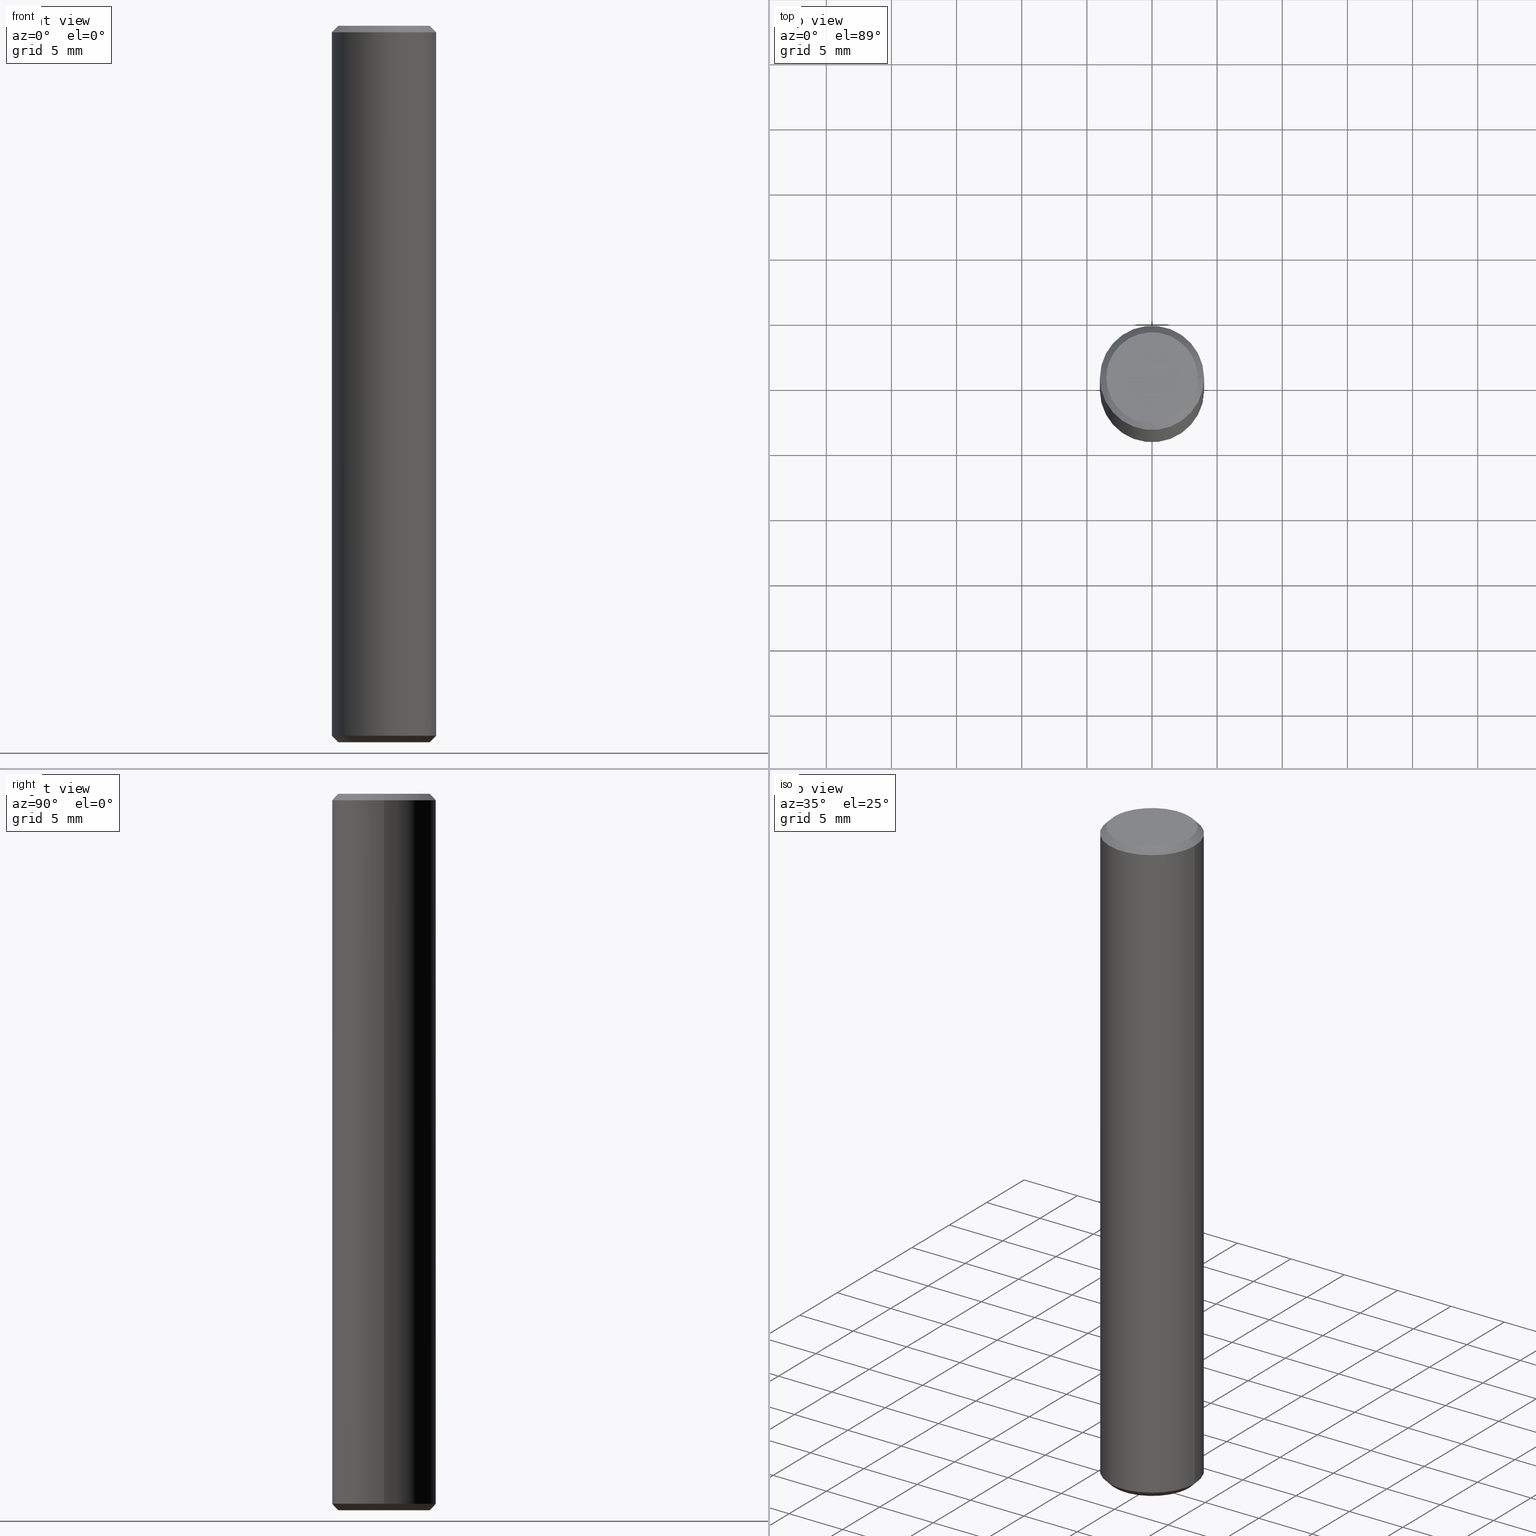
[diagram: canonical four-view strip — front | top / right | iso, engineering-drawing reading convention]
A machine part, canonical four-view strip (front | top / right | iso — engineering-drawing reading convention). The complete STEP part file that produces these views, byte-faithful:
ISO-10303-21;
HEADER;
/* Generated by software containing ST-Developer
 * from STEP Tools, Inc. (www.steptools.com) 
 */

FILE_DESCRIPTION(
/* description */ ('PERNO D8 L=55 ZIGRINATO IN C45 ZINC.'),
/* implementation_level */ '2;1');

FILE_NAME(
/* name */ 
'Q:\\Catalogo\\2_Accessori Dierre\\Per Download Web e catalogo cartace
o\\CATALOGO ACCESSORI PER RIPARI\\PAGINA 63\\CCRAA0000007.stp',
/* time_stamp */ '2018-11-06T12:32:56+01:00',
/* author */ ('fzagni'),
/* organization */ (''),
/* preprocessor_version */ 'ST-DEVELOPER v16.1',
/* originating_system */ 'Autodesk Inventor 2016',
/* authorisation */ '');

FILE_SCHEMA (('AUTOMOTIVE_DESIGN { 1 0 10303 214 3 1 1 }'));
ENDSEC;

DATA;
#10=MECHANICAL_DESIGN_GEOMETRIC_PRESENTATION_REPRESENTATION('',(#13),#391);
#11=SHAPE_REPRESENTATION_RELATIONSHIP('SRR','None',#400,#12);
#12=ADVANCED_BREP_SHAPE_REPRESENTATION('',(#14),#390);
#13=STYLED_ITEM('',(#409),#14);
#14=MANIFOLD_SOLID_BREP('None',#87);
#15=LINE('',#302,#17);
#16=LINE('',#387,#18);
#17=VECTOR('',#112,0.707106781186546);
#18=VECTOR('',#113,0.707106781186547);
#19=B_SPLINE_SURFACE_WITH_KNOTS('',3,3,((#218,#219,#220,#221,#222,#223,
#224,#225,#226,#227,#228,#229,#230,#231,#232,#233,#234,#235,#236,#237,#238),
(#239,#240,#241,#242,#243,#244,#245,#246,#247,#248,#249,#250,#251,#252,
#253,#254,#255,#256,#257,#258,#259),(#260,#261,#262,#263,#264,#265,#266,
#267,#268,#269,#270,#271,#272,#273,#274,#275,#276,#277,#278,#279,#280),
(#281,#282,#283,#284,#285,#286,#287,#288,#289,#290,#291,#292,#293,#294,
#295,#296,#297,#298,#299,#300,#301)),.UNSPECIFIED.,.F.,.T.,.F.,(4,4),(4,
1,1,1,1,1,1,1,1,1,1,1,1,1,1,1,1,1,4),(-0.000155473939237252,0.707106781186548),
(0.,1.46317741512096,2.19830596759267,2.93343452006437,4.39661193518533,
5.8597893503063,7.32296676542726,8.78614418054822,10.2493215956692,11.7124990107901,
13.1756764259111,14.6388538410321,16.102031256153,17.565208671274,19.028386086395,
20.4915635015159,21.2266920539876,21.9618206064593,23.4249980215803),
 .UNSPECIFIED.);
#20=B_SPLINE_SURFACE_WITH_KNOTS('',3,3,((#303,#304,#305,#306,#307,#308,
#309,#310,#311,#312,#313,#314,#315,#316,#317,#318,#319,#320,#321,#322,#323),
(#324,#325,#326,#327,#328,#329,#330,#331,#332,#333,#334,#335,#336,#337,
#338,#339,#340,#341,#342,#343,#344),(#345,#346,#347,#348,#349,#350,#351,
#352,#353,#354,#355,#356,#357,#358,#359,#360,#361,#362,#363,#364,#365),
(#366,#367,#368,#369,#370,#371,#372,#373,#374,#375,#376,#377,#378,#379,
#380,#381,#382,#383,#384,#385,#386)),.UNSPECIFIED.,.F.,.T.,.F.,(4,4),(4,
1,1,1,1,1,1,1,1,1,1,1,1,1,1,1,1,1,4),(-0.000155473939219691,0.707106781186548),
(0.,1.46317741512096,2.19830596759267,2.93343452006437,4.39661193518533,
5.8597893503063,7.32296676542726,8.78614418054822,10.2493215956692,11.7124990107901,
13.1756764259111,14.6388538410321,16.102031256153,17.565208671274,19.028386086395,
20.4915635015159,21.2266920539876,21.9618206064593,23.4249980215803),
 .UNSPECIFIED.);
#21=FACE_BOUND('',#34,.T.);
#22=CIRCLE('',#91,4.);
#23=CIRCLE('',#92,4.);
#24=CIRCLE('',#93,4.);
#25=CIRCLE('',#94,4.);
#26=CYLINDRICAL_SURFACE('',#90,4.);
#27=FACE_OUTER_BOUND('',#32,.T.);
#28=FACE_OUTER_BOUND('',#33,.T.);
#29=FACE_OUTER_BOUND('',#35,.T.);
#30=FACE_OUTER_BOUND('',#36,.T.);
#31=FACE_OUTER_BOUND('',#37,.T.);
#32=EDGE_LOOP('',(#60,#61));
#33=EDGE_LOOP('',(#62,#63));
#34=EDGE_LOOP('',(#64,#65));
#35=EDGE_LOOP('',(#66,#67));
#36=EDGE_LOOP('',(#68,#69,#70,#71,#72,#73));
#37=EDGE_LOOP('',(#74,#75,#76,#77,#78,#79));
#38=B_SPLINE_CURVE_WITH_KNOTS('',3,(#118,#119,#120,#121,#122,#123,#124,
#125,#126,#127,#128,#129,#130,#131,#132,#133,#134,#135,#136,#137,#138,#139),
 .UNSPECIFIED.,.F.,.F.,(4,2,2,2,2,2,2,2,2,2,4),(-1.08955497045056,-1.01702181769227,
-0.944640724717616,-0.810905341004596,-0.677848824479045,-0.544900310347416,
-0.411914353175308,-0.279312765602494,-0.145679835180853,-0.0728933082064506,
-9.99999955952902E-7),.UNSPECIFIED.);
#39=B_SPLINE_CURVE_WITH_KNOTS('',3,(#140,#141,#142,#143,#144,#145,#146,
#147,#148,#149,#150,#151,#152,#153,#154,#155,#156,#157,#158,#159,#160,#161),
 .UNSPECIFIED.,.F.,.F.,(4,2,2,2,2,2,2,2,2,2,4),(-1.09215615577238,-1.01908969371656,
-0.94612926562469,-0.812177060236959,-0.679258661775982,-0.545954975382256,
-0.412688821487687,-0.279314407160549,-0.145259503700677,-0.0727059776514787,
0.),.UNSPECIFIED.);
#40=B_SPLINE_CURVE_WITH_KNOTS('',3,(#174,#175,#176,#177,#178,#179,#180,
#181,#182,#183,#184,#185,#186,#187,#188,#189,#190,#191,#192,#193,#194,#195),
 .UNSPECIFIED.,.F.,.F.,(4,2,2,2,2,2,2,2,2,2,4),(9.99999956626313E-7,0.0728933082065209,
0.145679835181092,0.279312765602998,0.411914353176092,0.544900310348418,
0.677848824480262,0.810905341006086,0.944640724719306,1.01702181769412,
1.08955497045244),.UNSPECIFIED.);
#41=B_SPLINE_CURVE_WITH_KNOTS('',3,(#196,#197,#198,#199,#200,#201,#202,
#203,#204,#205,#206,#207,#208,#209,#210,#211,#212,#213,#214,#215,#216,#217),
 .UNSPECIFIED.,.F.,.F.,(4,2,2,2,2,2,2,2,2,2,4),(1.00000000138878E-6,0.0727074412823273,
0.145261459495931,0.279316349619257,0.412690750677529,0.545956891313938,
0.679260564445767,0.812178949683233,0.946131141744621,1.01909156257802,
1.09215801736459),.UNSPECIFIED.);
#42=VERTEX_POINT('',#116);
#43=VERTEX_POINT('',#117);
#44=VERTEX_POINT('',#163);
#45=VERTEX_POINT('',#164);
#46=VERTEX_POINT('',#167);
#47=VERTEX_POINT('',#168);
#48=VERTEX_POINT('',#172);
#49=VERTEX_POINT('',#173);
#50=EDGE_CURVE('',#42,#43,#38,.T.);
#51=EDGE_CURVE('',#43,#42,#39,.T.);
#52=EDGE_CURVE('',#44,#45,#22,.T.);
#53=EDGE_CURVE('',#45,#44,#23,.T.);
#54=EDGE_CURVE('',#46,#47,#24,.T.);
#55=EDGE_CURVE('',#47,#46,#25,.T.);
#56=EDGE_CURVE('',#48,#49,#40,.T.);
#57=EDGE_CURVE('',#49,#48,#41,.T.);
#58=EDGE_CURVE('',#47,#48,#15,.T.);
#59=EDGE_CURVE('',#44,#43,#16,.T.);
#60=ORIENTED_EDGE('',*,*,#50,.F.);
#61=ORIENTED_EDGE('',*,*,#51,.F.);
#62=ORIENTED_EDGE('',*,*,#52,.T.);
#63=ORIENTED_EDGE('',*,*,#53,.T.);
#64=ORIENTED_EDGE('',*,*,#54,.F.);
#65=ORIENTED_EDGE('',*,*,#55,.F.);
#66=ORIENTED_EDGE('',*,*,#56,.T.);
#67=ORIENTED_EDGE('',*,*,#57,.T.);
#68=ORIENTED_EDGE('',*,*,#58,.T.);
#69=ORIENTED_EDGE('',*,*,#57,.F.);
#70=ORIENTED_EDGE('',*,*,#56,.F.);
#71=ORIENTED_EDGE('',*,*,#58,.F.);
#72=ORIENTED_EDGE('',*,*,#55,.T.);
#73=ORIENTED_EDGE('',*,*,#54,.T.);
#74=ORIENTED_EDGE('',*,*,#53,.F.);
#75=ORIENTED_EDGE('',*,*,#52,.F.);
#76=ORIENTED_EDGE('',*,*,#59,.T.);
#77=ORIENTED_EDGE('',*,*,#51,.T.);
#78=ORIENTED_EDGE('',*,*,#50,.T.);
#79=ORIENTED_EDGE('',*,*,#59,.F.);
#80=PLANE('',#89);
#81=PLANE('',#95);
#82=ADVANCED_FACE('',(#27),#80,.F.);
#83=ADVANCED_FACE('',(#28,#21),#26,.T.);
#84=ADVANCED_FACE('',(#29),#81,.T.);
#85=ADVANCED_FACE('',(#30),#19,.F.);
#86=ADVANCED_FACE('',(#31),#20,.T.);
#87=CLOSED_SHELL('',(#82,#83,#84,#85,#86));
#88=AXIS2_PLACEMENT_3D('placement',#114,#96,#97);
#89=AXIS2_PLACEMENT_3D('',#115,#98,#99);
#90=AXIS2_PLACEMENT_3D('',#162,#100,#101);
#91=AXIS2_PLACEMENT_3D('',#165,#102,#103);
#92=AXIS2_PLACEMENT_3D('',#166,#104,#105);
#93=AXIS2_PLACEMENT_3D('',#169,#106,#107);
#94=AXIS2_PLACEMENT_3D('',#170,#108,#109);
#95=AXIS2_PLACEMENT_3D('',#171,#110,#111);
#96=DIRECTION('axis',(0.,0.,1.));
#97=DIRECTION('refdir',(1.,0.,0.));
#98=DIRECTION('center_axis',(0.,0.,1.));
#99=DIRECTION('ref_axis',(1.,0.,0.));
#100=DIRECTION('center_axis',(0.,0.,1.));
#101=DIRECTION('ref_axis',(1.,0.,0.));
#102=DIRECTION('center_axis',(0.,0.,1.));
#103=DIRECTION('ref_axis',(1.,0.,0.));
#104=DIRECTION('center_axis',(0.,0.,1.));
#105=DIRECTION('ref_axis',(1.,0.,0.));
#106=DIRECTION('center_axis',(0.,0.,1.));
#107=DIRECTION('ref_axis',(1.,0.,0.));
#108=DIRECTION('center_axis',(0.,0.,1.));
#109=DIRECTION('ref_axis',(1.,0.,0.));
#110=DIRECTION('center_axis',(0.,0.,1.));
#111=DIRECTION('ref_axis',(1.,0.,0.));
#112=DIRECTION('',(-0.707106781186549,0.,0.707106781186546));
#113=DIRECTION('',(-0.707106781186547,0.,-0.707106781186548));
#114=CARTESIAN_POINT('',(0.,0.,0.));
#115=CARTESIAN_POINT('Origin',(-4.80000057601305,-4.80000057603258,0.));
#116=CARTESIAN_POINT('',(-3.5,0.,0.));
#117=CARTESIAN_POINT('',(3.5,0.,0.));
#118=CARTESIAN_POINT('Ctrl Pts',(-3.5,-6.93889390390723E-16,0.));
#119=CARTESIAN_POINT('Ctrl Pts',(-3.5,-0.242355248613938,0.));
#120=CARTESIAN_POINT('Ctrl Pts',(-3.4744972633184,-0.484677860407086,0.));
#121=CARTESIAN_POINT('Ctrl Pts',(-3.37466710701788,-0.958478367467242,0.));
#122=CARTESIAN_POINT('Ctrl Pts',(-3.30034828038073,-1.19041683216786,0.));
#123=CARTESIAN_POINT('Ctrl Pts',(-3.02092157343852,-1.82337171273479,0.));
#124=CARTESIAN_POINT('Ctrl Pts',(-2.75953541421208,-2.19968022452362,0.));
#125=CARTESIAN_POINT('Ctrl Pts',(-2.11378351514736,-2.82532242067013,0.));
#126=CARTESIAN_POINT('Ctrl Pts',(-1.73078760346247,-3.07518865955989,0.));
#127=CARTESIAN_POINT('Ctrl Pts',(-0.898085462997565,-3.41241076088357,0.));
#128=CARTESIAN_POINT('Ctrl Pts',(-0.449011260616427,-3.49992143665332,0.));
#129=CARTESIAN_POINT('Ctrl Pts',(0.449137718192253,-3.50007858547292,0.));
#130=CARTESIAN_POINT('Ctrl Pts',(0.898022418884269,-3.41267577033783,0.));
#131=CARTESIAN_POINT('Ctrl Pts',(1.72928765719718,-3.07558529925445,0.));
#132=CARTESIAN_POINT('Ctrl Pts',(2.11206711395462,-2.82597704878312,0.));
#133=CARTESIAN_POINT('Ctrl Pts',(2.75716581564116,-2.20289698175353,0.));
#134=CARTESIAN_POINT('Ctrl Pts',(3.01800199088004,-1.82898203679301,0.));
#135=CARTESIAN_POINT('Ctrl Pts',(3.29845652102043,-1.19553932260172,0.));
#136=CARTESIAN_POINT('Ctrl Pts',(3.37326496683079,-0.96186011320736,0.));
#137=CARTESIAN_POINT('Ctrl Pts',(3.47383428472662,-0.486705104341524,0.));
#138=CARTESIAN_POINT('Ctrl Pts',(3.5,-0.242974806163814,0.));
#139=CARTESIAN_POINT('Ctrl Pts',(3.5,7.28583859910259E-15,0.));
#140=CARTESIAN_POINT('Ctrl Pts',(3.5,-9.0205620750794E-16,0.));
#141=CARTESIAN_POINT('Ctrl Pts',(3.5,0.242974806163817,0.));
#142=CARTESIAN_POINT('Ctrl Pts',(3.47383428472662,0.486705104341518,0.));
#143=CARTESIAN_POINT('Ctrl Pts',(3.37326496683079,0.961860113207344,0.));
#144=CARTESIAN_POINT('Ctrl Pts',(3.29845652102044,1.1955393226017,0.));
#145=CARTESIAN_POINT('Ctrl Pts',(3.01800199088005,1.828982036793,0.));
#146=CARTESIAN_POINT('Ctrl Pts',(2.75716581564117,2.20289698175351,0.));
#147=CARTESIAN_POINT('Ctrl Pts',(2.11206711395462,2.82597704878311,0.));
#148=CARTESIAN_POINT('Ctrl Pts',(1.72928765719718,3.07558529925445,0.));
#149=CARTESIAN_POINT('Ctrl Pts',(0.898022418884264,3.41267577033783,0.));
#150=CARTESIAN_POINT('Ctrl Pts',(0.449137718192245,3.50007858547292,0.));
#151=CARTESIAN_POINT('Ctrl Pts',(-0.449011260616424,3.49992143665332,0.));
#152=CARTESIAN_POINT('Ctrl Pts',(-0.898085462997559,3.41241076088358,0.));
#153=CARTESIAN_POINT('Ctrl Pts',(-1.73078760346246,3.07518865955989,0.));
#154=CARTESIAN_POINT('Ctrl Pts',(-2.11378351514735,2.82532242067013,0.));
#155=CARTESIAN_POINT('Ctrl Pts',(-2.75953541421208,2.19968022452362,0.));
#156=CARTESIAN_POINT('Ctrl Pts',(-3.02092157343852,1.82337171273479,0.));
#157=CARTESIAN_POINT('Ctrl Pts',(-3.30034760499454,1.19041836204662,0.));
#158=CARTESIAN_POINT('Ctrl Pts',(-3.3746660826094,0.958481564329571,0.));
#159=CARTESIAN_POINT('Ctrl Pts',(-3.47449624590432,0.484684357633543,0.));
#160=CARTESIAN_POINT('Ctrl Pts',(-3.5,0.242353481271708,0.));
#161=CARTESIAN_POINT('Ctrl Pts',(-3.5,2.42861286636753E-15,0.));
#162=CARTESIAN_POINT('Origin',(0.,0.,0.));
#163=CARTESIAN_POINT('',(4.,0.,0.5));
#164=CARTESIAN_POINT('',(-4.,0.,0.5));
#165=CARTESIAN_POINT('Origin',(0.,0.,0.5));
#166=CARTESIAN_POINT('Origin',(0.,0.,0.5));
#167=CARTESIAN_POINT('',(-4.,0.,54.5));
#168=CARTESIAN_POINT('',(4.,0.,54.5));
#169=CARTESIAN_POINT('Origin',(0.,0.,54.5));
#170=CARTESIAN_POINT('Origin',(0.,0.,54.5));
#171=CARTESIAN_POINT('Origin',(-4.80000057601305,-4.80000057603258,55.));
#172=CARTESIAN_POINT('',(3.5,0.,55.));
#173=CARTESIAN_POINT('',(-3.5,0.,55.));
#174=CARTESIAN_POINT('Ctrl Pts',(3.5,-2.08166817117217E-16,55.));
#175=CARTESIAN_POINT('Ctrl Pts',(3.5,0.242974806164053,55.));
#176=CARTESIAN_POINT('Ctrl Pts',(3.47383428472649,0.486705104341955,55.));
#177=CARTESIAN_POINT('Ctrl Pts',(3.37326496683072,0.961860113207427,55.));
#178=CARTESIAN_POINT('Ctrl Pts',(3.29845652102034,1.19553932260184,55.));
#179=CARTESIAN_POINT('Ctrl Pts',(3.01800199087992,1.8289820367931,55.));
#180=CARTESIAN_POINT('Ctrl Pts',(2.75716581564111,2.20289698175356,55.));
#181=CARTESIAN_POINT('Ctrl Pts',(2.11206711395443,2.82597704878324,55.));
#182=CARTESIAN_POINT('Ctrl Pts',(1.72928765719694,3.07558529925453,55.0000000000001));
#183=CARTESIAN_POINT('Ctrl Pts',(0.898022418884165,3.41267577033778,55.0000000000001));
#184=CARTESIAN_POINT('Ctrl Pts',(0.449137718192335,3.50007858547292,55.));
#185=CARTESIAN_POINT('Ctrl Pts',(-0.449011260616497,3.49992143665332,55.));
#186=CARTESIAN_POINT('Ctrl Pts',(-0.898085462997445,3.41241076088353,55.0000000000001));
#187=CARTESIAN_POINT('Ctrl Pts',(-1.73078760346223,3.07518865955996,55.0000000000001));
#188=CARTESIAN_POINT('Ctrl Pts',(-2.1137835151472,2.82532242067028,55.));
#189=CARTESIAN_POINT('Ctrl Pts',(-2.75953541421206,2.19968022452363,55.));
#190=CARTESIAN_POINT('Ctrl Pts',(-3.02092157343844,1.82337171273479,55.0000000000001));
#191=CARTESIAN_POINT('Ctrl Pts',(-3.30034828038063,1.190416832168,55.0000000000001));
#192=CARTESIAN_POINT('Ctrl Pts',(-3.3746671070178,0.958478367467301,55.0000000000001));
#193=CARTESIAN_POINT('Ctrl Pts',(-3.47449726331823,0.484677860407673,55.0000000000001));
#194=CARTESIAN_POINT('Ctrl Pts',(-3.5,0.242355248614225,55.));
#195=CARTESIAN_POINT('Ctrl Pts',(-3.5,-4.16333634234434E-16,55.));
#196=CARTESIAN_POINT('Ctrl Pts',(-3.5,-1.38777878078145E-16,55.));
#197=CARTESIAN_POINT('Ctrl Pts',(-3.50000000000001,-0.242355248614015,55.));
#198=CARTESIAN_POINT('Ctrl Pts',(-3.47449726331835,-0.484677860407254,55.));
#199=CARTESIAN_POINT('Ctrl Pts',(-3.37466710701789,-0.958478367467172,55.));
#200=CARTESIAN_POINT('Ctrl Pts',(-3.30034828038075,-1.19041683216781,55.));
#201=CARTESIAN_POINT('Ctrl Pts',(-3.02092157343841,-1.82337171273504,55.));
#202=CARTESIAN_POINT('Ctrl Pts',(-2.75953541421187,-2.19968022452377,55.0000000000001));
#203=CARTESIAN_POINT('Ctrl Pts',(-2.11378351514717,-2.82532242067016,55.0000000000001));
#204=CARTESIAN_POINT('Ctrl Pts',(-1.73078760346226,-3.07518865955995,55.));
#205=CARTESIAN_POINT('Ctrl Pts',(-0.898085462997455,-3.41241076088354,55.));
#206=CARTESIAN_POINT('Ctrl Pts',(-0.44901126061648,-3.49992143665332,55.));
#207=CARTESIAN_POINT('Ctrl Pts',(0.449137718192284,-3.50007858547293,55.));
#208=CARTESIAN_POINT('Ctrl Pts',(0.898022418884136,-3.4126757703378,55.));
#209=CARTESIAN_POINT('Ctrl Pts',(1.72928765719696,-3.07558529925452,55.));
#210=CARTESIAN_POINT('Ctrl Pts',(2.11206711395446,-2.82597704878318,55.0000000000001));
#211=CARTESIAN_POINT('Ctrl Pts',(2.75716581564114,-2.2028969817535,55.0000000000001));
#212=CARTESIAN_POINT('Ctrl Pts',(3.01800199087992,-1.82898203679303,55.0000000000001));
#213=CARTESIAN_POINT('Ctrl Pts',(3.29845652102033,-1.19553932260183,55.0000000000001));
#214=CARTESIAN_POINT('Ctrl Pts',(3.37326496683069,-0.961860113207375,55.0000000000001));
#215=CARTESIAN_POINT('Ctrl Pts',(3.47383428472632,-0.486705104342487,55.0000000000001));
#216=CARTESIAN_POINT('Ctrl Pts',(3.5,-0.242974806164282,55.));
#217=CARTESIAN_POINT('Ctrl Pts',(3.5,1.17961196366423E-15,55.));
#218=CARTESIAN_POINT('Ctrl Pts',(4.00010993667673,0.,54.4998900633233));
#219=CARTESIAN_POINT('Ctrl Pts',(4.00010993667673,0.520255157097452,54.4998900633233));
#220=CARTESIAN_POINT('Ctrl Pts',(3.84236577736367,1.31276792838239,54.4998900633232));
#221=CARTESIAN_POINT('Ctrl Pts',(3.34721651785783,2.2363794975493,54.4998900633233));
#222=CARTESIAN_POINT('Ctrl Pts',(2.68250321511253,3.04796154067474,54.4998900633232));
#223=CARTESIAN_POINT('Ctrl Pts',(1.57021886381378,3.79242374847558,54.4998900633233));
#224=CARTESIAN_POINT('Ctrl Pts',(0.000109661465914448,4.10409042029349,
54.4998900633233));
#225=CARTESIAN_POINT('Ctrl Pts',(-1.57065750967744,3.79187419041086,54.4998900633233));
#226=CARTESIAN_POINT('Ctrl Pts',(-2.90213442518709,2.902131007807,54.4998900633233));
#227=CARTESIAN_POINT('Ctrl Pts',(-3.79183395986907,1.57063094865598,54.4998900633233));
#228=CARTESIAN_POINT('Ctrl Pts',(-4.10424792508056,5.55074859543121E-16,
54.4998900633233));
#229=CARTESIAN_POINT('Ctrl Pts',(-3.79183395986907,-1.57063094865598,54.4998900633233));
#230=CARTESIAN_POINT('Ctrl Pts',(-2.90213442518709,-2.902131007807,54.4998900633232));
#231=CARTESIAN_POINT('Ctrl Pts',(-1.57065750967744,-3.79187419041085,54.4998900633233));
#232=CARTESIAN_POINT('Ctrl Pts',(0.000109661465918449,-4.10409042029349,
54.4998900633233));
#233=CARTESIAN_POINT('Ctrl Pts',(1.57021886381378,-3.79242374847558,54.4998900633232));
#234=CARTESIAN_POINT('Ctrl Pts',(2.68250321511253,-3.04796154067474,54.4998900633233));
#235=CARTESIAN_POINT('Ctrl Pts',(3.34721651785783,-2.2363794975493,54.4998900633232));
#236=CARTESIAN_POINT('Ctrl Pts',(3.84236577736367,-1.31276792838239,54.4998900633233));
#237=CARTESIAN_POINT('Ctrl Pts',(4.00010993667673,-0.520255157097454,54.4998900633233));
#238=CARTESIAN_POINT('Ctrl Pts',(4.00010993667673,-9.79744326680281E-16,
54.4998900633233));
#239=CARTESIAN_POINT('Ctrl Pts',(3.83340662445115,0.,54.6665933755488));
#240=CARTESIAN_POINT('Ctrl Pts',(3.83340662445115,0.498573688521957,54.6665933755488));
#241=CARTESIAN_POINT('Ctrl Pts',(3.6822364029193,1.25805874155772,54.6665933755488));
#242=CARTESIAN_POINT('Ctrl Pts',(3.20772233167388,2.14317909167632,54.6665933755489));
#243=CARTESIAN_POINT('Ctrl Pts',(2.57071074488194,2.92093871070002,54.6665933755488));
#244=CARTESIAN_POINT('Ctrl Pts',(1.50478049095388,3.63437569223664,54.6665933755488));
#245=CARTESIAN_POINT('Ctrl Pts',(0.000105091359122632,3.93305375441011,
54.6665933755488));
#246=CARTESIAN_POINT('Ctrl Pts',(-1.50520085639037,3.63384903682987,54.6665933755489));
#247=CARTESIAN_POINT('Ctrl Pts',(-2.78118889397389,2.78118561901204,54.6665933755488));
#248=CARTESIAN_POINT('Ctrl Pts',(-3.63381048288314,1.50517540229105,54.6665933755488));
#249=CARTESIAN_POINT('Ctrl Pts',(-3.93320469523516,6.10671527058115E-16,
54.6665933755489));
#250=CARTESIAN_POINT('Ctrl Pts',(-3.63381048288314,-1.50517540229105,54.6665933755489));
#251=CARTESIAN_POINT('Ctrl Pts',(-2.78118889397389,-2.78118561901204,54.6665933755488));
#252=CARTESIAN_POINT('Ctrl Pts',(-1.50520085639037,-3.63384903682987,54.6665933755489));
#253=CARTESIAN_POINT('Ctrl Pts',(0.000105091359125632,-3.93305375441011,
54.6665933755489));
#254=CARTESIAN_POINT('Ctrl Pts',(1.50478049095388,-3.63437569223664,54.6665933755488));
#255=CARTESIAN_POINT('Ctrl Pts',(2.57071074488194,-2.92093871070002,54.6665933755489));
#256=CARTESIAN_POINT('Ctrl Pts',(3.20772233167388,-2.14317909167631,54.6665933755488));
#257=CARTESIAN_POINT('Ctrl Pts',(3.6822364029193,-1.25805874155773,54.6665933755489));
#258=CARTESIAN_POINT('Ctrl Pts',(3.83340662445115,-0.498573688521958,54.6665933755488));
#259=CARTESIAN_POINT('Ctrl Pts',(3.83340662445115,-9.38913851164176E-16,
54.6665933755488));
#260=CARTESIAN_POINT('Ctrl Pts',(3.66670331222558,0.,54.8332966877744));
#261=CARTESIAN_POINT('Ctrl Pts',(3.66670331222558,0.476892219946461,54.8332966877744));
#262=CARTESIAN_POINT('Ctrl Pts',(3.52210702847494,1.20334955473305,54.8332966877744));
#263=CARTESIAN_POINT('Ctrl Pts',(3.06822814548993,2.04997868580333,54.8332966877744));
#264=CARTESIAN_POINT('Ctrl Pts',(2.45891827465135,2.79391588072531,54.8332966877744));
#265=CARTESIAN_POINT('Ctrl Pts',(1.43934211809398,3.4763276359977,54.8332966877744));
#266=CARTESIAN_POINT('Ctrl Pts',(0.000100521252329816,3.76201708852672,
54.8332966877744));
#267=CARTESIAN_POINT('Ctrl Pts',(-1.4397442031033,3.47582388324888,54.8332966877744));
#268=CARTESIAN_POINT('Ctrl Pts',(-2.66024336276069,2.66024023021707,54.8332966877744));
#269=CARTESIAN_POINT('Ctrl Pts',(-3.47578700589722,1.43971985592612,54.8332966877744));
#270=CARTESIAN_POINT('Ctrl Pts',(-3.76216146538976,4.996004E-16,54.8332966877744));
#271=CARTESIAN_POINT('Ctrl Pts',(-3.47578700589722,-1.43971985592612,54.8332966877744));
#272=CARTESIAN_POINT('Ctrl Pts',(-2.66024336276069,-2.66024023021707,54.8332966877744));
#273=CARTESIAN_POINT('Ctrl Pts',(-1.4397442031033,-3.47582388324888,54.8332966877744));
#274=CARTESIAN_POINT('Ctrl Pts',(0.000100521252333816,-3.76201708852672,
54.8332966877744));
#275=CARTESIAN_POINT('Ctrl Pts',(1.43934211809398,-3.4763276359977,54.8332966877744));
#276=CARTESIAN_POINT('Ctrl Pts',(2.45891827465135,-2.79391588072531,54.8332966877744));
#277=CARTESIAN_POINT('Ctrl Pts',(3.06822814548993,-2.04997868580333,54.8332966877744));
#278=CARTESIAN_POINT('Ctrl Pts',(3.52210702847494,-1.20334955473306,54.8332966877744));
#279=CARTESIAN_POINT('Ctrl Pts',(3.66670331222558,-0.476892219946463,54.8332966877744));
#280=CARTESIAN_POINT('Ctrl Pts',(3.66670331222558,-8.98083275560098E-16,
54.8332966877744));
#281=CARTESIAN_POINT('Ctrl Pts',(3.5,0.,55.));
#282=CARTESIAN_POINT('Ctrl Pts',(3.5,0.455210751370966,55.));
#283=CARTESIAN_POINT('Ctrl Pts',(3.36197765403058,1.14864036790839,55.));
#284=CARTESIAN_POINT('Ctrl Pts',(2.92873395930598,1.95677827993034,55.));
#285=CARTESIAN_POINT('Ctrl Pts',(2.34712580442076,2.66689305075059,55.));
#286=CARTESIAN_POINT('Ctrl Pts',(1.37390374523409,3.31827957975876,55.));
#287=CARTESIAN_POINT('Ctrl Pts',(9.5951145538E-5,3.59098042264334,55.));
#288=CARTESIAN_POINT('Ctrl Pts',(-1.37428754981623,3.3177987296679,55.));
#289=CARTESIAN_POINT('Ctrl Pts',(-2.53929783154749,2.5392948414221,55.));
#290=CARTESIAN_POINT('Ctrl Pts',(-3.3177635289113,1.3742643095612,55.));
#291=CARTESIAN_POINT('Ctrl Pts',(-3.59111823554435,4.996004E-16,55.));
#292=CARTESIAN_POINT('Ctrl Pts',(-3.3177635289113,-1.3742643095612,55.));
#293=CARTESIAN_POINT('Ctrl Pts',(-2.53929783154749,-2.5392948414221,55.));
#294=CARTESIAN_POINT('Ctrl Pts',(-1.37428754981624,-3.3177987296679,55.));
#295=CARTESIAN_POINT('Ctrl Pts',(9.5951145541E-5,-3.59098042264334,55.));
#296=CARTESIAN_POINT('Ctrl Pts',(1.37390374523408,-3.31827957975877,55.));
#297=CARTESIAN_POINT('Ctrl Pts',(2.34712580442076,-2.6668930507506,55.));
#298=CARTESIAN_POINT('Ctrl Pts',(2.92873395930598,-1.95677827993034,55.));
#299=CARTESIAN_POINT('Ctrl Pts',(3.36197765403058,-1.14864036790839,55.));
#300=CARTESIAN_POINT('Ctrl Pts',(3.5,-0.455210751370967,55.));
#301=CARTESIAN_POINT('Ctrl Pts',(3.5,-8.572528E-16,55.));
#302=CARTESIAN_POINT('',(4.,0.,54.5));
#303=CARTESIAN_POINT('Ctrl Pts',(4.00010993667672,0.,0.50010993667672));
#304=CARTESIAN_POINT('Ctrl Pts',(4.00010993667672,0.52025515709745,0.50010993667672));
#305=CARTESIAN_POINT('Ctrl Pts',(3.84236577736366,1.31276792838238,0.50010993667672));
#306=CARTESIAN_POINT('Ctrl Pts',(3.34721651785782,2.2363794975493,0.50010993667672));
#307=CARTESIAN_POINT('Ctrl Pts',(2.68250321511252,3.04796154067473,0.50010993667672));
#308=CARTESIAN_POINT('Ctrl Pts',(1.57021886381378,3.79242374847557,0.50010993667672));
#309=CARTESIAN_POINT('Ctrl Pts',(0.000109661465914448,4.10409042029348,
0.50010993667672));
#310=CARTESIAN_POINT('Ctrl Pts',(-1.57065750967743,3.79187419041084,0.50010993667672));
#311=CARTESIAN_POINT('Ctrl Pts',(-2.90213442518708,2.90213100780699,0.50010993667672));
#312=CARTESIAN_POINT('Ctrl Pts',(-3.79183395986905,1.57063094865598,0.50010993667672));
#313=CARTESIAN_POINT('Ctrl Pts',(-4.10424792508055,5.55074859543125E-16,
0.50010993667672));
#314=CARTESIAN_POINT('Ctrl Pts',(-3.79183395986905,-1.57063094865597,0.50010993667672));
#315=CARTESIAN_POINT('Ctrl Pts',(-2.90213442518708,-2.90213100780699,0.50010993667672));
#316=CARTESIAN_POINT('Ctrl Pts',(-1.57065750967744,-3.79187419041084,0.50010993667672));
#317=CARTESIAN_POINT('Ctrl Pts',(0.000109661465918448,-4.10409042029348,
0.50010993667672));
#318=CARTESIAN_POINT('Ctrl Pts',(1.57021886381377,-3.79242374847557,0.50010993667672));
#319=CARTESIAN_POINT('Ctrl Pts',(2.68250321511252,-3.04796154067473,0.50010993667672));
#320=CARTESIAN_POINT('Ctrl Pts',(3.34721651785782,-2.2363794975493,0.50010993667672));
#321=CARTESIAN_POINT('Ctrl Pts',(3.84236577736366,-1.31276792838239,0.50010993667672));
#322=CARTESIAN_POINT('Ctrl Pts',(4.00010993667672,-0.520255157097452,0.50010993667672));
#323=CARTESIAN_POINT('Ctrl Pts',(4.00010993667672,-9.79744326680278E-16,
0.50010993667672));
#324=CARTESIAN_POINT('Ctrl Pts',(3.83340662445115,0.,0.333406624451146));
#325=CARTESIAN_POINT('Ctrl Pts',(3.83340662445115,0.498573688521956,0.333406624451146));
#326=CARTESIAN_POINT('Ctrl Pts',(3.6822364029193,1.25805874155772,0.333406624451146));
#327=CARTESIAN_POINT('Ctrl Pts',(3.20772233167388,2.14317909167631,0.333406624451146));
#328=CARTESIAN_POINT('Ctrl Pts',(2.57071074488193,2.92093871070001,0.333406624451146));
#329=CARTESIAN_POINT('Ctrl Pts',(1.50478049095388,3.63437569223663,0.333406624451146));
#330=CARTESIAN_POINT('Ctrl Pts',(0.000105091359122632,3.9330537544101,0.333406624451146));
#331=CARTESIAN_POINT('Ctrl Pts',(-1.50520085639037,3.63384903682986,0.333406624451146));
#332=CARTESIAN_POINT('Ctrl Pts',(-2.78118889397388,2.78118561901203,0.333406624451146));
#333=CARTESIAN_POINT('Ctrl Pts',(-3.63381048288313,1.50517540229105,0.333406624451146));
#334=CARTESIAN_POINT('Ctrl Pts',(-3.93320469523515,6.1067152705811E-16,
0.333406624451146));
#335=CARTESIAN_POINT('Ctrl Pts',(-3.63381048288313,-1.50517540229105,0.333406624451146));
#336=CARTESIAN_POINT('Ctrl Pts',(-2.78118889397388,-2.78118561901203,0.333406624451146));
#337=CARTESIAN_POINT('Ctrl Pts',(-1.50520085639037,-3.63384903682986,0.333406624451146));
#338=CARTESIAN_POINT('Ctrl Pts',(0.000105091359125632,-3.9330537544101,
0.333406624451146));
#339=CARTESIAN_POINT('Ctrl Pts',(1.50478049095388,-3.63437569223663,0.333406624451146));
#340=CARTESIAN_POINT('Ctrl Pts',(2.57071074488193,-2.92093871070002,0.333406624451146));
#341=CARTESIAN_POINT('Ctrl Pts',(3.20772233167388,-2.14317909167631,0.333406624451146));
#342=CARTESIAN_POINT('Ctrl Pts',(3.6822364029193,-1.25805874155772,0.333406624451146));
#343=CARTESIAN_POINT('Ctrl Pts',(3.83340662445115,-0.498573688521957,0.333406624451146));
#344=CARTESIAN_POINT('Ctrl Pts',(3.83340662445115,-9.38913851164174E-16,
0.333406624451146));
#345=CARTESIAN_POINT('Ctrl Pts',(3.66670331222557,0.,0.166703312225574));
#346=CARTESIAN_POINT('Ctrl Pts',(3.66670331222557,0.47689221994646,0.166703312225574));
#347=CARTESIAN_POINT('Ctrl Pts',(3.52210702847494,1.20334955473305,0.166703312225574));
#348=CARTESIAN_POINT('Ctrl Pts',(3.06822814548992,2.04997868580333,0.166703312225574));
#349=CARTESIAN_POINT('Ctrl Pts',(2.45891827465135,2.7939158807253,0.166703312225574));
#350=CARTESIAN_POINT('Ctrl Pts',(1.43934211809398,3.4763276359977,0.166703312225574));
#351=CARTESIAN_POINT('Ctrl Pts',(0.000100521252329816,3.76201708852672,
0.166703312225574));
#352=CARTESIAN_POINT('Ctrl Pts',(-1.4397442031033,3.47582388324888,0.166703312225574));
#353=CARTESIAN_POINT('Ctrl Pts',(-2.66024336276069,2.66024023021706,0.166703312225574));
#354=CARTESIAN_POINT('Ctrl Pts',(-3.47578700589721,1.43971985592612,0.166703312225574));
#355=CARTESIAN_POINT('Ctrl Pts',(-3.76216146538975,4.996004E-16,0.166703312225574));
#356=CARTESIAN_POINT('Ctrl Pts',(-3.47578700589721,-1.43971985592612,0.166703312225574));
#357=CARTESIAN_POINT('Ctrl Pts',(-2.66024336276069,-2.66024023021706,0.166703312225574));
#358=CARTESIAN_POINT('Ctrl Pts',(-1.4397442031033,-3.47582388324888,0.166703312225574));
#359=CARTESIAN_POINT('Ctrl Pts',(0.000100521252333816,-3.76201708852672,
0.166703312225574));
#360=CARTESIAN_POINT('Ctrl Pts',(1.43934211809398,-3.4763276359977,0.166703312225574));
#361=CARTESIAN_POINT('Ctrl Pts',(2.45891827465134,-2.79391588072531,0.166703312225574));
#362=CARTESIAN_POINT('Ctrl Pts',(3.06822814548993,-2.04997868580332,0.166703312225574));
#363=CARTESIAN_POINT('Ctrl Pts',(3.52210702847494,-1.20334955473306,0.166703312225574));
#364=CARTESIAN_POINT('Ctrl Pts',(3.66670331222557,-0.476892219946462,0.166703312225574));
#365=CARTESIAN_POINT('Ctrl Pts',(3.66670331222557,-8.98083275560097E-16,
0.166703312225574));
#366=CARTESIAN_POINT('Ctrl Pts',(3.5,0.,0.));
#367=CARTESIAN_POINT('Ctrl Pts',(3.5,0.455210751370966,0.));
#368=CARTESIAN_POINT('Ctrl Pts',(3.36197765403058,1.14864036790839,0.));
#369=CARTESIAN_POINT('Ctrl Pts',(2.92873395930598,1.95677827993034,0.));
#370=CARTESIAN_POINT('Ctrl Pts',(2.34712580442076,2.66689305075059,0.));
#371=CARTESIAN_POINT('Ctrl Pts',(1.37390374523409,3.31827957975876,0.));
#372=CARTESIAN_POINT('Ctrl Pts',(9.5951145538E-5,3.59098042264334,0.));
#373=CARTESIAN_POINT('Ctrl Pts',(-1.37428754981623,3.3177987296679,0.));
#374=CARTESIAN_POINT('Ctrl Pts',(-2.53929783154749,2.5392948414221,0.));
#375=CARTESIAN_POINT('Ctrl Pts',(-3.3177635289113,1.3742643095612,0.));
#376=CARTESIAN_POINT('Ctrl Pts',(-3.59111823554435,4.996004E-16,0.));
#377=CARTESIAN_POINT('Ctrl Pts',(-3.3177635289113,-1.3742643095612,0.));
#378=CARTESIAN_POINT('Ctrl Pts',(-2.53929783154749,-2.5392948414221,0.));
#379=CARTESIAN_POINT('Ctrl Pts',(-1.37428754981624,-3.3177987296679,0.));
#380=CARTESIAN_POINT('Ctrl Pts',(9.5951145541E-5,-3.59098042264334,0.));
#381=CARTESIAN_POINT('Ctrl Pts',(1.37390374523408,-3.31827957975877,0.));
#382=CARTESIAN_POINT('Ctrl Pts',(2.34712580442076,-2.6668930507506,0.));
#383=CARTESIAN_POINT('Ctrl Pts',(2.92873395930598,-1.95677827993034,0.));
#384=CARTESIAN_POINT('Ctrl Pts',(3.36197765403058,-1.14864036790839,0.));
#385=CARTESIAN_POINT('Ctrl Pts',(3.5,-0.455210751370967,0.));
#386=CARTESIAN_POINT('Ctrl Pts',(3.5,-8.572528E-16,0.));
#387=CARTESIAN_POINT('',(4.,0.,0.5));
#388=UNCERTAINTY_MEASURE_WITH_UNIT(LENGTH_MEASURE(0.01),#392,
'DISTANCE_ACCURACY_VALUE',
'Maximum model space distance between geometric entities at asserted c
onnectivities');
#389=UNCERTAINTY_MEASURE_WITH_UNIT(LENGTH_MEASURE(1.E-6),#392,
'DISTANCE_ACCURACY_VALUE',
'Maximum model space distance between geometric entities at asserted c
onnectivities');
#390=(
GEOMETRIC_REPRESENTATION_CONTEXT(3)
GLOBAL_UNCERTAINTY_ASSIGNED_CONTEXT((#388))
GLOBAL_UNIT_ASSIGNED_CONTEXT((#392,#395,#393))
REPRESENTATION_CONTEXT('','3D')
);
#391=(
GEOMETRIC_REPRESENTATION_CONTEXT(3)
GLOBAL_UNCERTAINTY_ASSIGNED_CONTEXT((#389))
GLOBAL_UNIT_ASSIGNED_CONTEXT((#392,#395,#393))
REPRESENTATION_CONTEXT('','3D')
);
#392=(
LENGTH_UNIT()
NAMED_UNIT(*)
SI_UNIT(.MILLI.,.METRE.)
);
#393=(
NAMED_UNIT(*)
SI_UNIT($,.STERADIAN.)
SOLID_ANGLE_UNIT()
);
#394=DIMENSIONAL_EXPONENTS(0.,0.,0.,0.,0.,0.,0.);
#395=(
CONVERSION_BASED_UNIT('degree',#397)
NAMED_UNIT(#394)
PLANE_ANGLE_UNIT()
);
#396=(
NAMED_UNIT(*)
PLANE_ANGLE_UNIT()
SI_UNIT($,.RADIAN.)
);
#397=PLANE_ANGLE_MEASURE_WITH_UNIT(PLANE_ANGLE_MEASURE(0.01745329252),#396);
#398=SHAPE_DEFINITION_REPRESENTATION(#399,#400);
#399=PRODUCT_DEFINITION_SHAPE('',$,#402);
#400=SHAPE_REPRESENTATION('',(#88),#390);
#401=PRODUCT_DEFINITION_CONTEXT('part definition',#406,'design');
#402=PRODUCT_DEFINITION('15.165.01P','15.165.01P',#403,#401);
#403=PRODUCT_DEFINITION_FORMATION('','B',#408);
#404=PRODUCT_RELATED_PRODUCT_CATEGORY('15.165.01P','15.165.01P',(#408));
#405=APPLICATION_PROTOCOL_DEFINITION('international standard',
'automotive_design',2009,#406);
#406=APPLICATION_CONTEXT(
'Core Data for Automotive Mechanical Design Process');
#407=PRODUCT_CONTEXT('part definition',#406,'mechanical');
#408=PRODUCT('15.165.01P','15.165.01P',$,(#407));
#409=PRESENTATION_STYLE_ASSIGNMENT((#410));
#410=SURFACE_STYLE_USAGE(.BOTH.,#411);
#411=SURFACE_SIDE_STYLE('',(#412));
#412=SURFACE_STYLE_FILL_AREA(#413);
#413=FILL_AREA_STYLE('',(#414));
#414=FILL_AREA_STYLE_COLOUR('',#415);
#415=COLOUR_RGB('',0.647058823529412,0.67843137254902,0.694117647058824);
ENDSEC;
END-ISO-10303-21;
